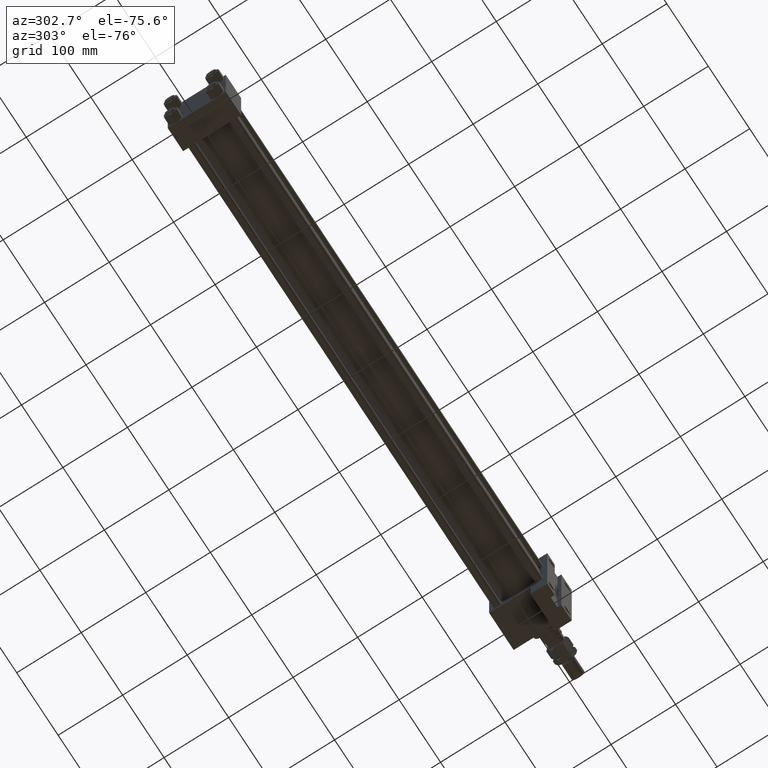
[diagram: clean part render]
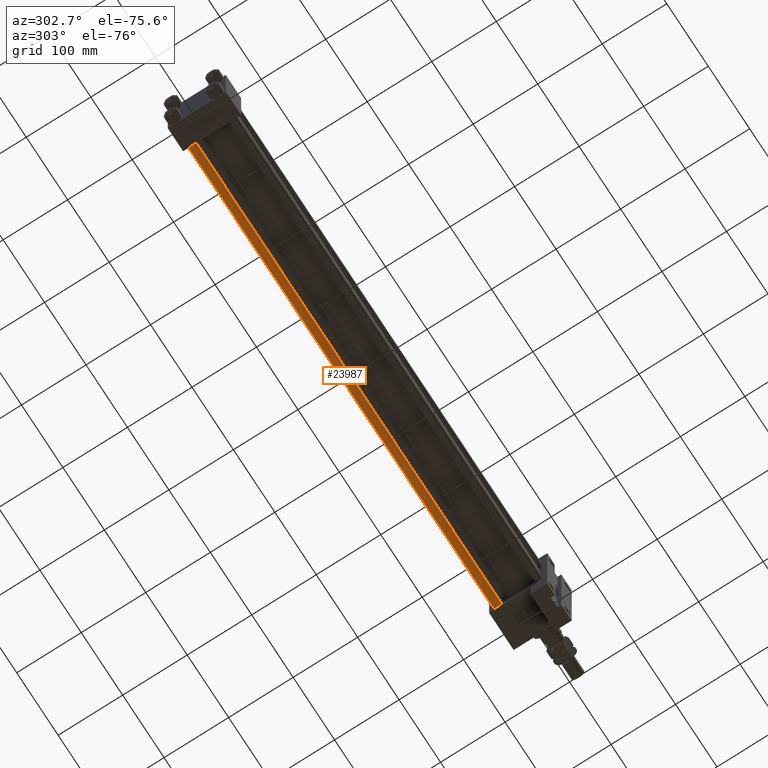
[diagram: same view with one face highlighted and labeled with its STEP entity id]
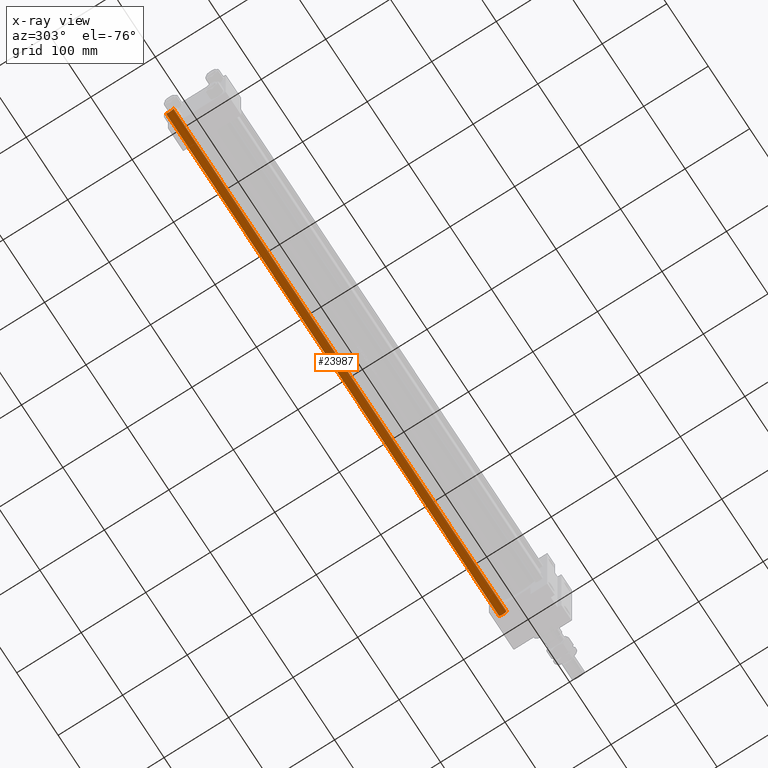
[diagram: x-ray of the same camera — body ghosted, the highlighted face saturated]
A machine part, auxiliary view. The second image highlights one B-rep face of the part: STEP entity #23987.
The next image is the same camera in x-ray: the body ghosted, the highlighted face saturated — about 0% of this face is hidden behind the body in this view.
In plain terms, the highlighted cylindrical surface (edge-blend (fillet) strip) has radius 6 mm, axis along (-1, -0, 0).
Its self-contained STEP definition (entity closure, byte-faithful):
#2063 = CARTESIAN_POINT ( 'NONE',  ( 0.000000000000000000, 0.000000000000000000, 0.5000000000000559552 ) ) ;
#2182 = DIRECTION ( 'NONE',  ( 1.000000000000000000, 0.000000000000000000, 0.000000000000000000 ) ) ;
#2368 = CARTESIAN_POINT ( 'NONE',  ( 0.000000000000000000, 0.000000000000000000, 805.0000000000000000 ) ) ;
#3792 = DIRECTION ( 'NONE',  ( -0.000000000000000000, -0.000000000000000000, -1.000000000000000000 ) ) ;
#4668 = LINE ( 'NONE', #9131, #27910 ) ;
#4912 = DIRECTION ( 'NONE',  ( -0.000000000000000000, -0.000000000000000000, -1.000000000000000000 ) ) ;
#5864 = ORIENTED_EDGE ( 'NONE', *, *, #17509, .T. ) ;
#6443 = CARTESIAN_POINT ( 'NONE',  ( 6.000000000000000888, 7.347880794884120722E-16, 0.5000000000000559552 ) ) ;
#6916 = VERTEX_POINT ( 'NONE', #6443 ) ;
#9131 = CARTESIAN_POINT ( 'NONE',  ( 6.000000000000000888, 7.347880794884120722E-16, 805.0000000000000000 ) ) ;
#10083 = CYLINDRICAL_SURFACE ( 'NONE', #28984, 6.000000000000000888 ) ;
#10936 = CIRCLE ( 'NONE', #16478, 6.000000000000000888 ) ;
#11250 = CARTESIAN_POINT ( 'NONE',  ( -6.000000000000000888, 0.000000000000000000, 805.0000000000000000 ) ) ;
#11381 = EDGE_LOOP ( 'NONE', ( #38320, #40561, #25844, #5864 ) ) ;
#16290 = EDGE_CURVE ( 'NONE', #18474, #20754, #40915, .T. ) ;
#16478 = AXIS2_PLACEMENT_3D ( 'NONE', #2063, #17248, #28461 ) ;
#17248 = DIRECTION ( 'NONE',  ( -0.000000000000000000, -0.000000000000000000, 1.000000000000000000 ) ) ;
#17509 = EDGE_CURVE ( 'NONE', #20754, #6916, #10936, .T. ) ;
#17959 = VERTEX_POINT ( 'NONE', #43053 ) ;
#18474 = VERTEX_POINT ( 'NONE', #48231 ) ;
#18852 = CIRCLE ( 'NONE', #29249, 6.000000000000000888 ) ;
#20754 = VERTEX_POINT ( 'NONE', #29729 ) ;
#21087 = CARTESIAN_POINT ( 'NONE',  ( 0.000000000000000000, 0.000000000000000000, 804.5000000000002274 ) ) ;
#21286 = FACE_OUTER_BOUND ( 'NONE', #11381, .T. ) ;
#23987 = ADVANCED_FACE ( 'NONE', ( #21286 ), #10083, .T. ) ;
#25844 = ORIENTED_EDGE ( 'NONE', *, *, #16290, .T. ) ;
#27910 = VECTOR ( 'NONE', #4912, 1000.000000000000000 ) ;
#28461 = DIRECTION ( 'NONE',  ( 1.000000000000000000, 0.000000000000000000, 0.000000000000000000 ) ) ;
#28984 = AXIS2_PLACEMENT_3D ( 'NONE', #2368, #43728, #48468 ) ;
#29249 = AXIS2_PLACEMENT_3D ( 'NONE', #21087, #45196, #2182 ) ;
#29729 = CARTESIAN_POINT ( 'NONE',  ( -6.000000000000000888, 0.000000000000000000, 0.5000000000000559552 ) ) ;
#30468 = EDGE_CURVE ( 'NONE', #17959, #18474, #18852, .T. ) ;
#32388 = VECTOR ( 'NONE', #3792, 1000.000000000000000 ) ;
#38320 = ORIENTED_EDGE ( 'NONE', *, *, #46522, .F. ) ;
#40561 = ORIENTED_EDGE ( 'NONE', *, *, #30468, .T. ) ;
#40915 = LINE ( 'NONE', #11250, #32388 ) ;
#43053 = CARTESIAN_POINT ( 'NONE',  ( 6.000000000000000888, 7.347880794884120722E-16, 804.5000000000002274 ) ) ;
#43728 = DIRECTION ( 'NONE',  ( -0.000000000000000000, -0.000000000000000000, -1.000000000000000000 ) ) ;
#45196 = DIRECTION ( 'NONE',  ( 0.000000000000000000, 0.000000000000000000, -1.000000000000000000 ) ) ;
#46522 = EDGE_CURVE ( 'NONE', #17959, #6916, #4668, .T. ) ;
#48231 = CARTESIAN_POINT ( 'NONE',  ( -6.000000000000000888, 0.000000000000000000, 804.5000000000002274 ) ) ;
#48468 = DIRECTION ( 'NONE',  ( -1.000000000000000000, 0.000000000000000000, 0.000000000000000000 ) ) ;